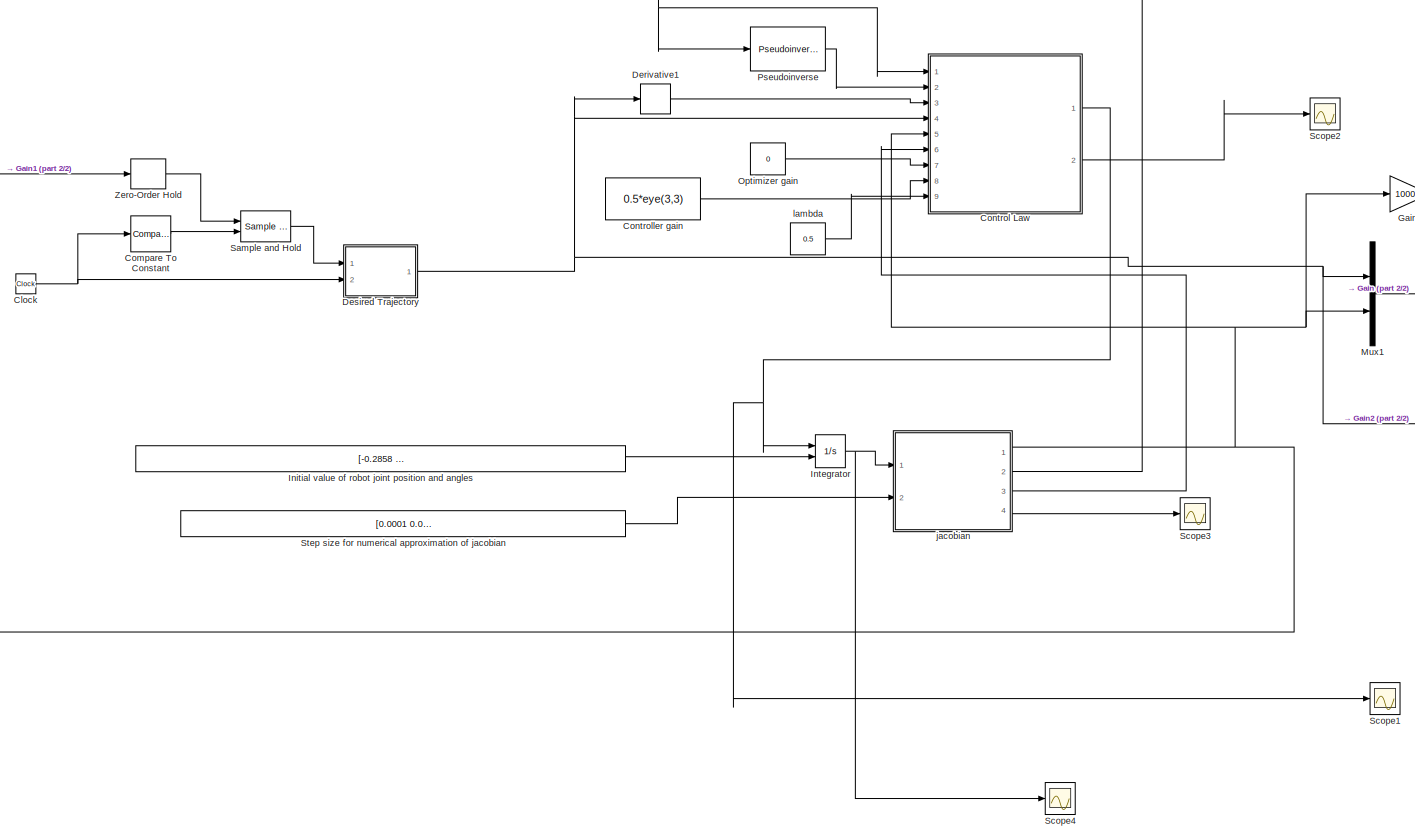
[diagram: root canvas - part 1/2, most of the canvas]
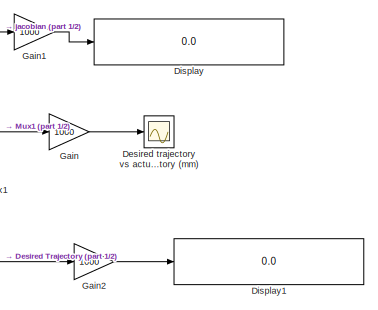
[diagram: root canvas - part 2/2, middle right region]
MODEL slx_be5b069a706a
KIND model
CONFIG AbsTol = auto
CONFIG EnableMultiTasking = off
CONFIG FixedStep = 0.05
CONFIG MaxStep = auto
CONFIG MinStep = auto
CONFIG RelTol = 1e-3
CONFIG SampleTimeConstraint = Unconstrained
CONFIG Solver = FixedStepAuto
CONFIG SolverName = FixedStepAuto
CONFIG StartTime = 0.0
CONFIG StopTime = 20
BLOCK [Clock] Clock
  Decimation = 1
BLOCK [Reference] Compare To Constant  REF=simulink/Logic and Bit
Operations/Compare
To Constant
  Ports = [1, 1]
  SourceBlock = simulink/Logic and Bit\nOperations/Compare\nTo Constant
  SourceProductBaseCode = SL
  SourceProductName = Simulink
  SourceType = Compare To Constant
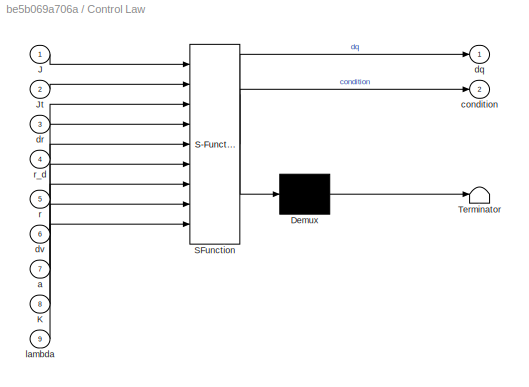
BLOCK [SubSystem] Control Law
  ErrorFcn = Stateflow.Translate.translate
  PermitHierarchicalResolution = ExplicitOnly
  Ports = [9, 2]
  RequestExecContextInheritance = off
  SFBlockType = MATLAB Function
  TreatAsAtomicUnit = on
BLOCK [Demux] Control Law/ Demux 
  Outputs = 1
  Ports = [1, 1]
BLOCK [S-Function] Control Law/ SFunction 
  EnableBusSupport = on
  FunctionName = sf_sfun
  PortCounts = [9 3]
  Ports = [9, 3]
  SFcnIsStateOwnerBlock = off
  SFunctionDeploymentMode = off
  Tag = Stateflow S-Function CTR_Control_Simulation 3
BLOCK [Terminator] Control Law/ Terminator 
BLOCK [Inport] Control Law/J
  IconDisplay = Port number
BLOCK [Inport] Control Law/Jt
  IconDisplay = Port number
  Port = 2
BLOCK [Inport] Control Law/K
  IconDisplay = Port number
  Port = 8
BLOCK [Inport] Control Law/a
  IconDisplay = Port number
  Port = 7
BLOCK [Outport] Control Law/condition
  IconDisplay = Port number
  Port = 2
BLOCK [Outport] Control Law/dq
  IconDisplay = Port number
BLOCK [Inport] Control Law/dr
  IconDisplay = Port number
  Port = 3
BLOCK [Inport] Control Law/dv
  IconDisplay = Port number
  Port = 6
BLOCK [Inport] Control Law/lambda
  IconDisplay = Port number
  Port = 9
BLOCK [Inport] Control Law/r
  IconDisplay = Port number
  Port = 5
BLOCK [Inport] Control Law/r_d
  IconDisplay = Port number
  Port = 4
BLOCK [Constant] Controller gain
  Value = 0.5*eye(3,3)
BLOCK [Derivative] Derivative1
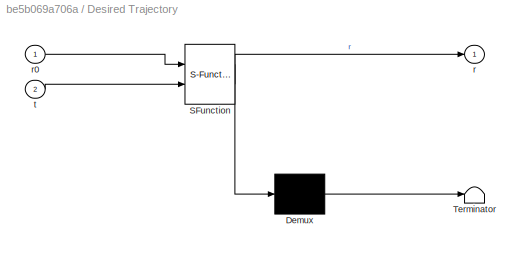
BLOCK [SubSystem] Desired Trajectory
  ErrorFcn = Stateflow.Translate.translate
  PermitHierarchicalResolution = ExplicitOnly
  Ports = [2, 1]
  RequestExecContextInheritance = off
  SFBlockType = MATLAB Function
  TreatAsAtomicUnit = on
BLOCK [Demux] Desired Trajectory/ Demux 
  Outputs = 1
  Ports = [1, 1]
BLOCK [S-Function] Desired Trajectory/ SFunction 
  EnableBusSupport = on
  FunctionName = sf_sfun
  PortCounts = [2 2]
  Ports = [2, 2]
  SFcnIsStateOwnerBlock = off
  SFunctionDeploymentMode = off
  Tag = Stateflow S-Function CTR_Control_Simulation 1
BLOCK [Terminator] Desired Trajectory/ Terminator 
BLOCK [Outport] Desired Trajectory/r
  IconDisplay = Port number
BLOCK [Inport] Desired Trajectory/r0
  IconDisplay = Port number
BLOCK [Inport] Desired Trajectory/t
  IconDisplay = Port number
  Port = 2
BLOCK [Scope] Desired trajectory vs actual trajectory (mm)
  Floating = off
  NumInputPorts = 1
  Ports = [1]
  ScopeSpecificationString = Simulink.scopes.TimeScopeBlockCfg('CurrentConfiguration', extmgr.ConfigurationSet(extmgr.Configuration('Core','General UI',true),extmgr.Configuration('Core','Source UI',true),extmgr.Configuration('Sources','WiredSimulink',true,'DataLogging',true,'DataLoggingVariableName','r','DataLoggingSaveFormat','StructureWithTime'),extmgr.Configuration('Visuals','Time Domain',true,'SerializedDisplays',{struct(...<+1522ch>
BLOCK [Display] Display
  Decimation = 1
  Ports = [1]
BLOCK [Display] Display1
  Decimation = 1
  Ports = [1]
BLOCK [Gain] Gain
  Gain = 1000
  OutDataTypeStr = Inherit: Inherit via internal rule
  ParamDataTypeStr = Inherit: Inherit via internal rule
  SaturateOnIntegerOverflow = off
BLOCK [Gain] Gain1
  Gain = 1000
  OutDataTypeStr = Inherit: Inherit via internal rule
  ParamDataTypeStr = Inherit: Inherit via internal rule
  SaturateOnIntegerOverflow = off
BLOCK [Gain] Gain2
  Gain = 1000
  OutDataTypeStr = Inherit: Inherit via internal rule
  ParamDataTypeStr = Inherit: Inherit via internal rule
  SaturateOnIntegerOverflow = off
BLOCK [Constant] Initial value of robot joint position and angles
  SampleTime = -1
  Value = [-0.2858   -0.2025   -0.0945  pi/2 pi/2 pi/2]
  VectorParams1D = off
BLOCK [Integrator] Integrator
  InitialCondition = [-0.2700   -0.1950   -0.0950    pi/2 pi/2 pi/2 ]
  InitialConditionSource = external
  Ports = [2, 1]
BLOCK [Mux] Mux1
  DisplayOption = bar
  Inputs = 2
  Ports = [2, 1]
BLOCK [Constant] Optimizer gain
  Value = 0
BLOCK [Reference] Pseudoinverse  REF=dspinverses/Pseudoinverse
  Ports = [1, 1]
  SourceBlock = dspinverses/Pseudoinverse
  SourceProductBaseCode = DS
  SourceProductName = DSP System Toolbox
  SourceType = Pseudoinverse
BLOCK [Reference] Sample and Hold  REF=powerlib_meascontrol/Additional Components/Sample and
Hold
  Ports = [2, 1]
  SourceBlock = powerlib_meascontrol/Additional Components/Sample and\nHold
  SourceProductBaseCode = PS
  SourceProductName = Simscape Electrical
  SourceType = Sample and Hold
BLOCK [Scope] Scope1
  Floating = off
  NumInputPorts = 1
  Ports = [1]
  ScopeSpecificationString = Simulink.scopes.TimeScopeBlockCfg('CurrentConfiguration', extmgr.ConfigurationSet(extmgr.Configuration('Core','General UI',true),extmgr.Configuration('Core','Source UI',true),extmgr.Configuration('Sources','WiredSimulink',true,'DataLogging',true,'DataLoggingVariableName','ScopeData1','DataLoggingSaveFormat','StructureWithTime'),extmgr.Configuration('Visuals','Time Domain',true,'SerializedDisplays'...<+1585ch>
BLOCK [Scope] Scope2
  Floating = off
  NumInputPorts = 1
  Ports = [1]
  ScopeSpecificationString = Simulink.scopes.TimeScopeBlockCfg('CurrentConfiguration', extmgr.ConfigurationSet(extmgr.Configuration('Core','General UI',true),extmgr.Configuration('Core','Source UI',true),extmgr.Configuration('Sources','WiredSimulink',true,'DataLogging',true,'DataLoggingVariableName','con','DataLoggingSaveFormat','StructureWithTime'),extmgr.Configuration('Visuals','Time Domain',true,'SerializedDisplays',{struc...<+1494ch>
BLOCK [Scope] Scope3
  Floating = off
  NumInputPorts = 1
  Ports = [1]
  ScopeSpecificationString = Simulink.scopes.TimeScopeBlockCfg('CurrentConfiguration', extmgr.ConfigurationSet(extmgr.Configuration('Core','General UI',true),extmgr.Configuration('Core','Source UI',true),extmgr.Configuration('Sources','WiredSimulink',true,'DataLoggingVariableName','ScopeData2'),extmgr.Configuration('Visuals','Time Domain',true,'SerializedDisplays',{struct('MinYLimReal','-0.01175','MaxYLimReal','0.18462','YLab...<+1425ch>
BLOCK [Scope] Scope4
  Floating = off
  NumInputPorts = 1
  Ports = [1]
  ScopeSpecificationString = Simulink.scopes.TimeScopeBlockCfg('CurrentConfiguration', extmgr.ConfigurationSet(extmgr.Configuration('Core','General UI',true),extmgr.Configuration('Core','Source UI',true),extmgr.Configuration('Sources','WiredSimulink',true,'DataLogging',true,'DataLoggingVariableName','Z','DataLoggingSaveFormat','StructureWithTime'),extmgr.Configuration('Visuals','Time Domain',true,'SerializedDisplays',{struct(...<+1552ch>
BLOCK [Constant] Step size for numerical approximation of jacobian
  Value = [0.0001 0.0001 0.0001 0.001 0.001 0.001 0.001 0.001 0.001]
BLOCK [ZeroOrderHold] Zero-Order Hold
  SampleTime = 5
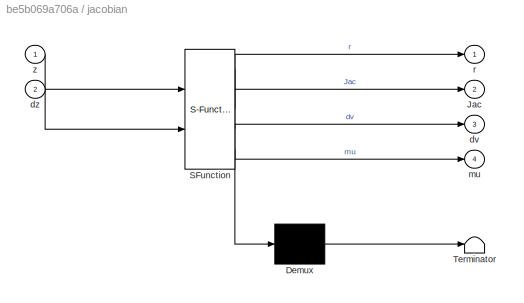
BLOCK [SubSystem] jacobian
  ErrorFcn = Stateflow.Translate.translate
  PermitHierarchicalResolution = ExplicitOnly
  Ports = [2, 4]
  RequestExecContextInheritance = off
  SFBlockType = MATLAB Function
  TreatAsAtomicUnit = on
BLOCK [Demux] jacobian/ Demux 
  Outputs = 1
  Ports = [1, 1]
BLOCK [S-Function] jacobian/ SFunction 
  EnableBusSupport = on
  FunctionName = sf_sfun
  PortCounts = [2 5]
  Ports = [2, 5]
  SFcnIsStateOwnerBlock = off
  SFunctionDeploymentMode = off
  Tag = Stateflow S-Function CTR_Control_Simulation 2
BLOCK [Terminator] jacobian/ Terminator 
BLOCK [Outport] jacobian/Jac
  IconDisplay = Port number
  Port = 2
BLOCK [Outport] jacobian/dv
  IconDisplay = Port number
  Port = 3
BLOCK [Inport] jacobian/dz
  IconDisplay = Port number
  Port = 2
BLOCK [Outport] jacobian/mu
  IconDisplay = Port number
  Port = 4
BLOCK [Outport] jacobian/r
  IconDisplay = Port number
BLOCK [Inport] jacobian/z
  IconDisplay = Port number
BLOCK [Constant] lambda
  Value = 0.5
NET Clock:1 -> Compare To Constant:1, Desired Trajectory:2
LINE Compare To Constant:1 -> Sample and Hold:2
NET Control Law:1 -> Integrator:1, Scope1:1
LINE Control Law:2 -> Scope2:1
LINE Controller gain:1 -> Control Law:8
LINE Derivative1:1 -> Control Law:3
NET Desired Trajectory:1 -> Control Law:4, Derivative1:1, Gain2:1, Mux1:1
LINE Gain1:1 -> Display:1
LINE Gain2:1 -> Display1:1
LINE Gain:1 -> Desired trajectory vs actual trajectory (mm):1
LINE Initial value of robot joint position and angles:1 -> Integrator:2
NET Integrator:1 -> Scope4:1, jacobian:1
LINE Mux1:1 -> Gain:1
LINE Optimizer gain:1 -> Control Law:7
LINE Pseudoinverse:1 -> Control Law:2
LINE Sample and Hold:1 -> Desired Trajectory:1
LINE Step size for numerical approximation of jacobian:1 -> jacobian:2
LINE Zero-Order Hold:1 -> Sample and Hold:1
NET jacobian:1 -> Control Law:5, Gain1:1, Mux1:2, Zero-Order Hold:1
NET jacobian:2 -> Control Law:1, Pseudoinverse:1
LINE jacobian:3 -> Control Law:6
LINE jacobian:4 -> Scope3:1
LINE lambda:1 -> Control Law:9
note: NET lines group one-source signal fan-out (src -> all destinations, sorted); 1:1 wires keep LINE
CHART Desired Trajectory states=1 transitions=1
  STATE_LABEL 'eML_blk_kernel()'
  STATE_LABEL "SCRIPT:\nfunction r = fcn(r0, t)\n\n\nif t>0.01\n    %straight line -- set runtime to 5 sec and optimazer gain to 0.02 and\n    %controller gain to 5*eye(3,3) and all inital angles to 0\n    %Velocity=0.001;\n    %r=r0+[-Velocity*t 2.*Velocity*t Velocity*t]';  \n    \n    %circle -- set runtime to 40 sec and optimazer gain to 0.02 and\n    %controller gain to 2*eye(3,3) and all inital angles to pi/2\n     R=0...<+231ch>"
CHART jacobian states=1 transitions=1
  STATE_LABEL 'eML_blk_kernel()'
  STATE_LABEL "SCRIPT:\nfunction [r, Jac, dv, mu] = jacobian(z, dz)\n\n% length of tubes\nl=1e-3.*[328+103  219+113 174];\n% length of the curved part of tubes\nl_k=1e-3*[103 113 174-40];\n\nif (iscolumn(z))\n    Z=z';\nelse\n    Z=z;\nend\n\n% initial value of twist\nuz_0=[0 0 0];\n\n% uncomment this section if you intend to include the BVP approximation of\n% jacobian\n\n% cost=ones(3,1);\n% k=1;\n% End=zeros(1,100); uz0_optim=zero...<+3608ch>"
CHART Control Law states=1 transitions=1
  STATE_LABEL 'eML_blk_kernel()'
  STATE_LABEL "SCRIPT:\nfunction [dq , condition] = fcn(J, Jt,dr, r_d,r, dv, a, K,lambda)\n\ncoder.extrinsic('cond');\n\ncondition=0;\n\ndq = Jt*(dr + K*(r_d-r) ) - a* (eye(6,6)- Jt*J)*dv;\n\n\n% for damped-least squared jacobian\nJ_d=inv(Jt*J+lambda^2*eye(6,6))*Jt;\ndq = J_d*(dr + K*(r_d-r) ) ;\n\ncondition=cond(Jt);"
